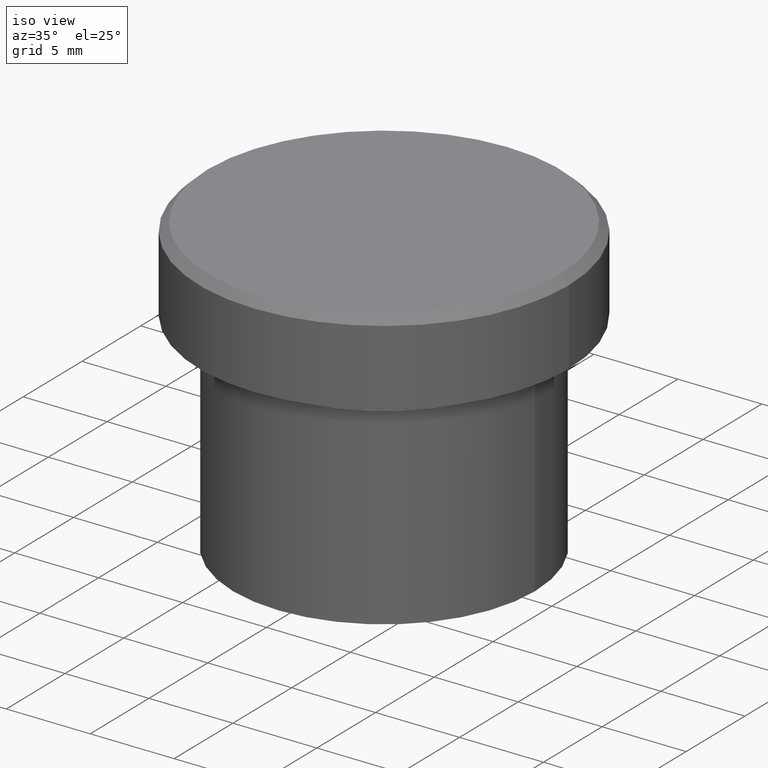
[diagram: clean part render]
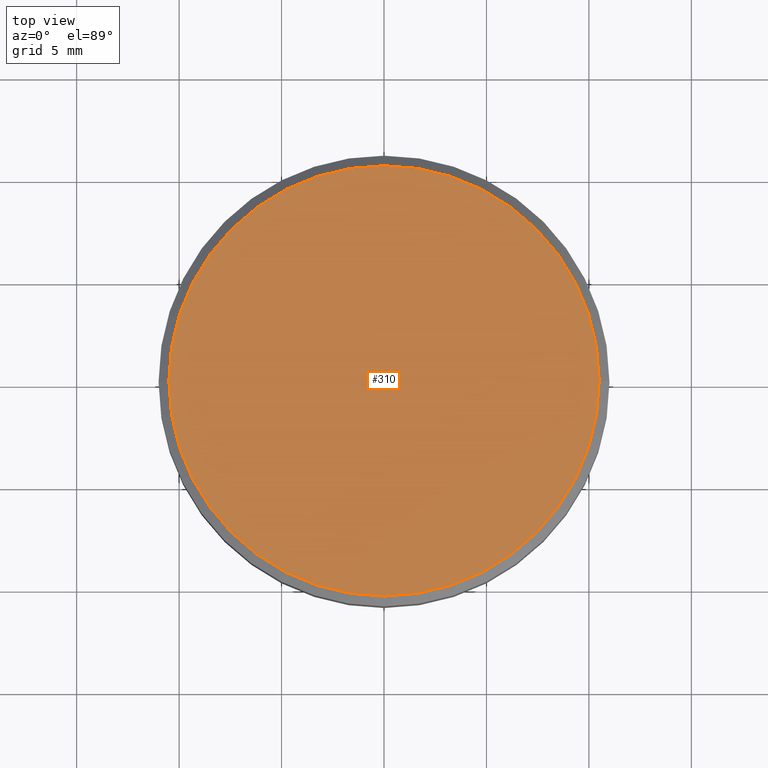
[diagram: tour spotlight — one face highlighted and labeled with its STEP entity id]
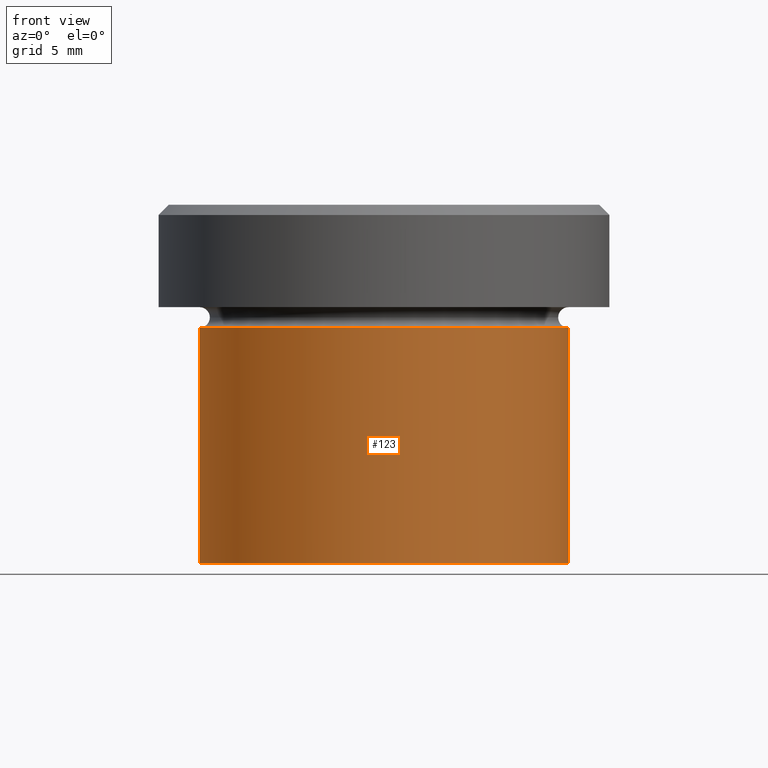
[diagram: tour spotlight — one face highlighted and labeled with its STEP entity id]
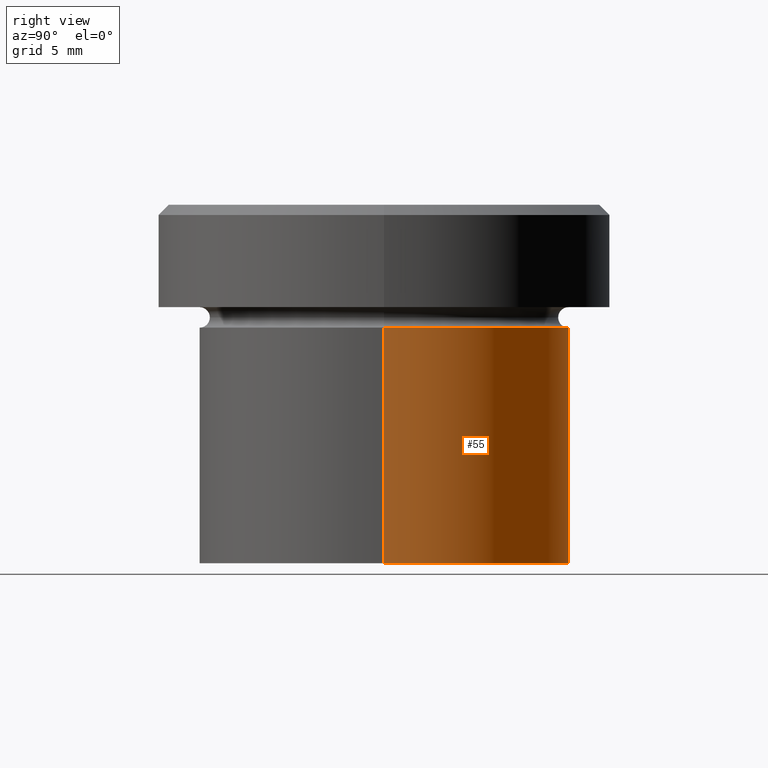
[diagram: tour spotlight — one face highlighted and labeled with its STEP entity id]
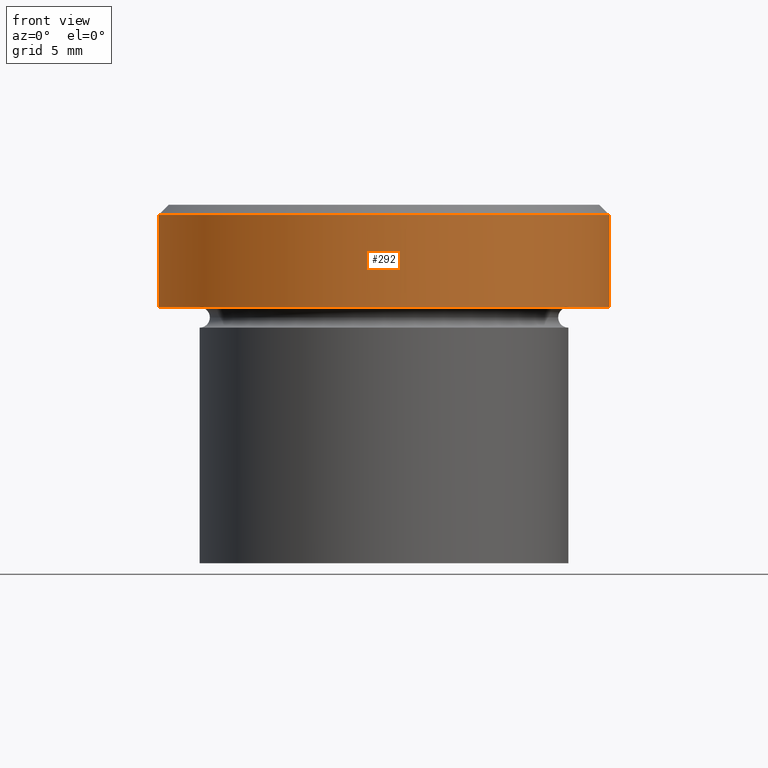
[diagram: tour spotlight — one face highlighted and labeled with its STEP entity id]
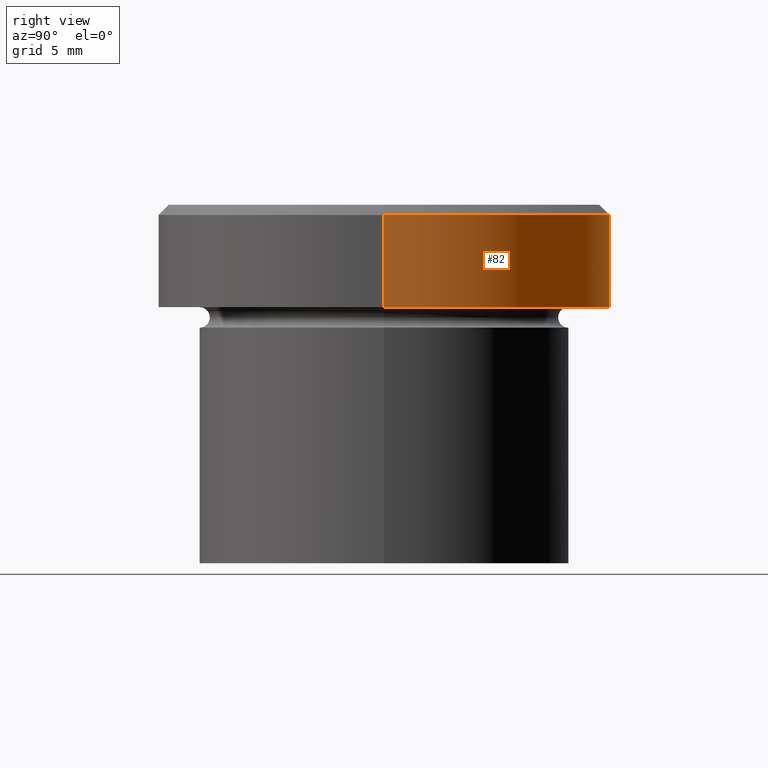
[diagram: tour spotlight — one face highlighted and labeled with its STEP entity id]
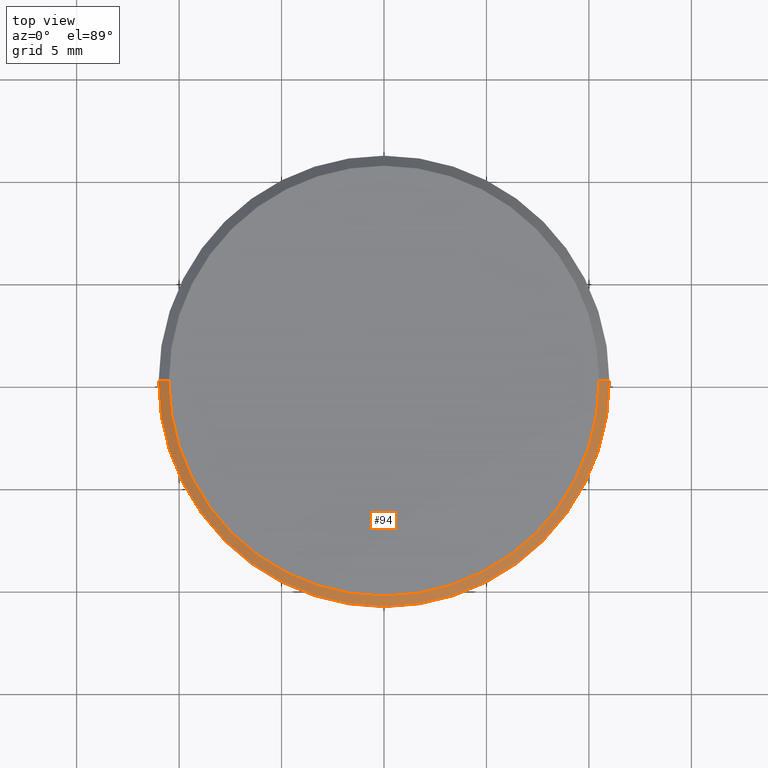
[diagram: tour spotlight — one face highlighted and labeled with its STEP entity id]
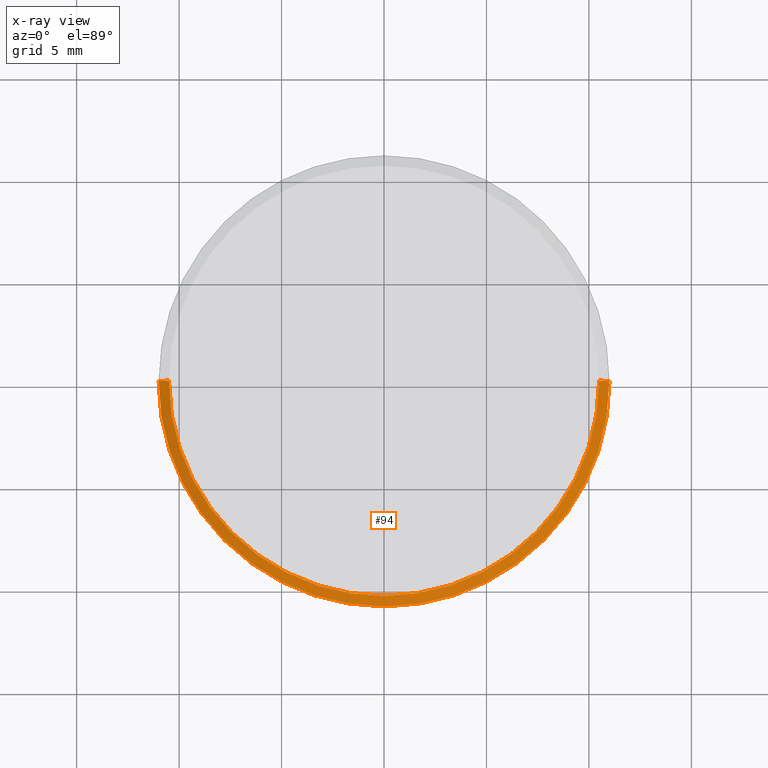
[diagram: x-ray of the same camera — body ghosted, this tour face saturated]
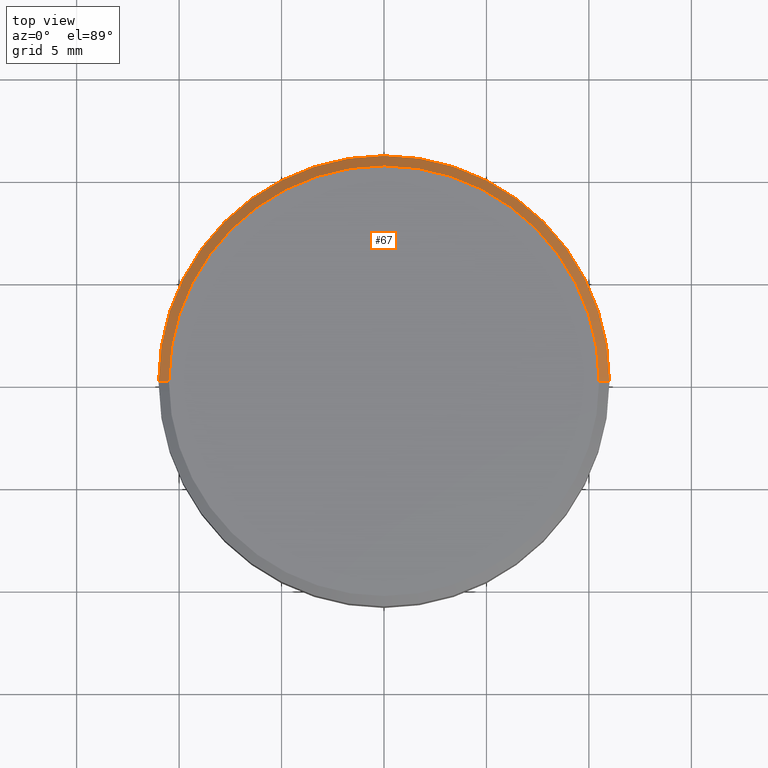
[diagram: tour spotlight — one face highlighted and labeled with its STEP entity id]
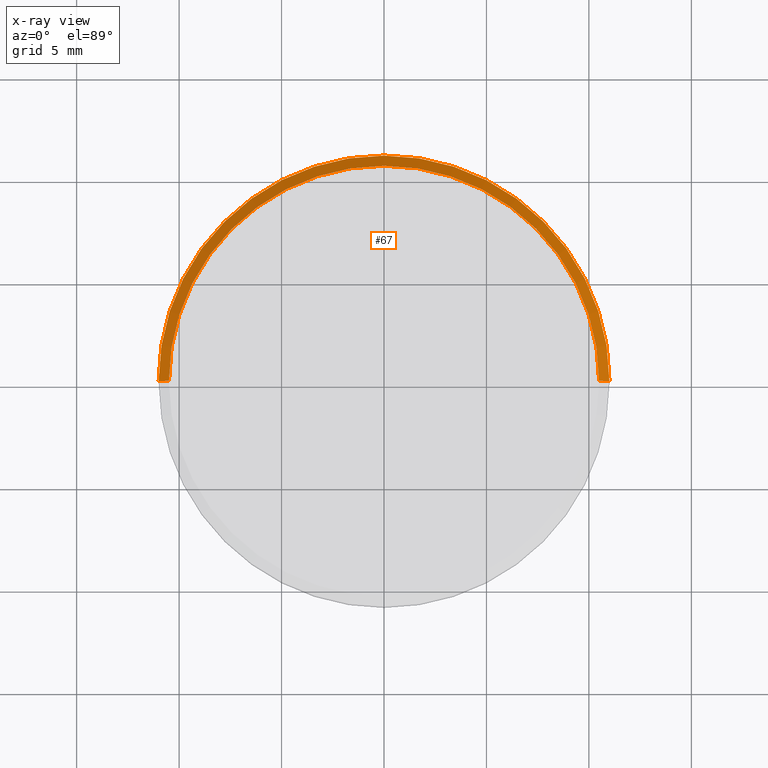
[diagram: x-ray of the same camera — body ghosted, this tour face saturated]
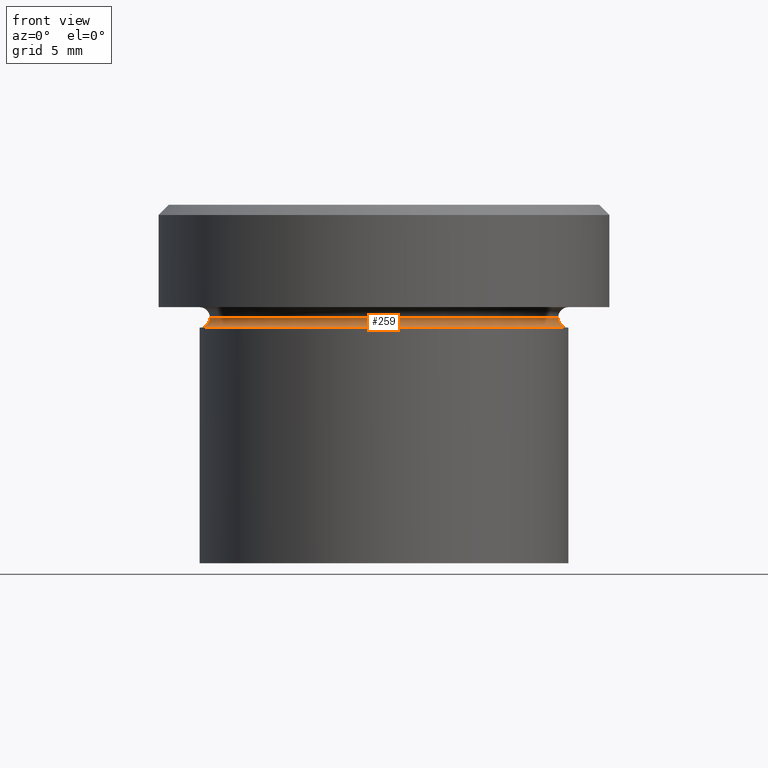
[diagram: tour spotlight — one face highlighted and labeled with its STEP entity id]
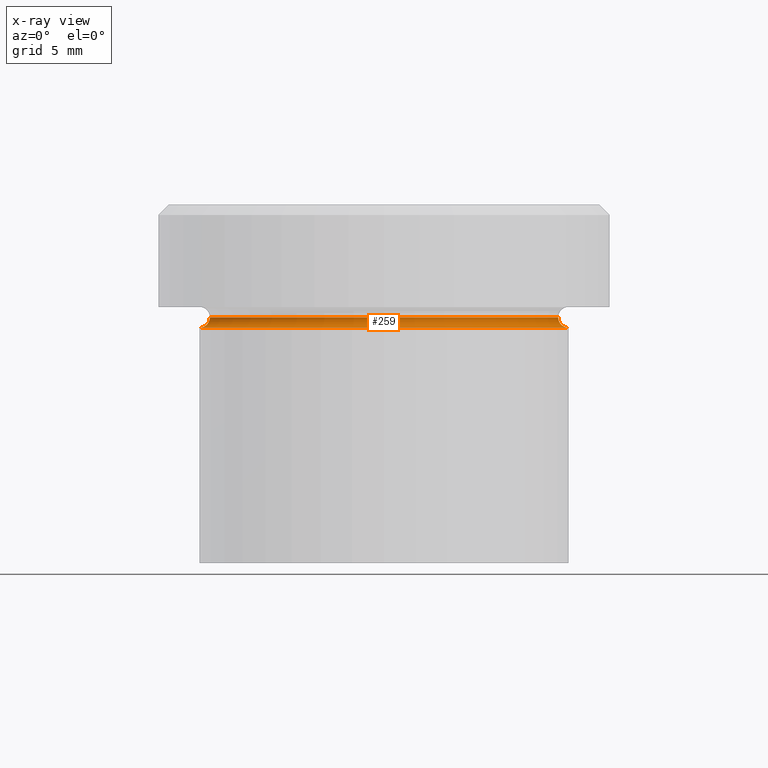
[diagram: x-ray of the same camera — body ghosted, this tour face saturated]
A machine part: a face-by-face anatomy tour. The part has 13 B-rep faces; the first image is the clean iso view, then the 8 largest visible faces are spotlighted one at a time (largest first), each with its STEP entity span.

Face 1 — top view, entity #310. In plain terms, the highlighted planar face has unit normal (0, -0, 1).
Definition (entity closure, byte-faithful):
#4 = VERTEX_POINT ( 'NONE', #103 ) ;
#20 = DIRECTION ( 'NONE',  ( 1.000000000000000000, 0.000000000000000000, 0.000000000000000000 ) ) ;
#27 = CARTESIAN_POINT ( 'NONE',  ( -10.50000000000001243, 0.000000000000000000, 0.000000000000000000 ) ) ;
#31 = CARTESIAN_POINT ( 'NONE',  ( 0.000000000000000000, 0.000000000000000000, 0.000000000000000000 ) ) ;
#49 = CIRCLE ( 'NONE', #76, 10.50000000000001243 ) ;
#52 = ORIENTED_EDGE ( 'NONE', *, *, #273, .T. ) ;
#58 = DIRECTION ( 'NONE',  ( 0.000000000000000000, -0.000000000000000000, 1.000000000000000000 ) ) ;
#74 = AXIS2_PLACEMENT_3D ( 'NONE', #93, #58, #183 ) ;
#76 = AXIS2_PLACEMENT_3D ( 'NONE', #31, #320, #160 ) ;
#81 = CARTESIAN_POINT ( 'NONE',  ( 0.000000000000000000, 0.000000000000000000, 0.000000000000000000 ) ) ;
#93 = CARTESIAN_POINT ( 'NONE',  ( 0.000000000000000000, 0.000000000000000000, 0.000000000000000000 ) ) ;
#103 = CARTESIAN_POINT ( 'NONE',  ( 10.50000000000001243, 1.316495309083405604E-15, 0.000000000000000000 ) ) ;
#110 = CIRCLE ( 'NONE', #330, 10.50000000000001243 ) ;
#120 = FACE_OUTER_BOUND ( 'NONE', #132, .T. ) ;
#132 = EDGE_LOOP ( 'NONE', ( #368, #52 ) ) ;
#160 = DIRECTION ( 'NONE',  ( 1.000000000000000000, 0.000000000000000000, 0.000000000000000000 ) ) ;
#177 = DIRECTION ( 'NONE',  ( -0.000000000000000000, -0.000000000000000000, 1.000000000000000000 ) ) ;
#183 = DIRECTION ( 'NONE',  ( 1.000000000000000000, 0.000000000000000000, 0.000000000000000000 ) ) ;
#273 = EDGE_CURVE ( 'NONE', #4, #308, #49, .T. ) ;
#308 = VERTEX_POINT ( 'NONE', #27 ) ;
#310 = ADVANCED_FACE ( 'NONE', ( #120 ), #374, .T. ) ;
#320 = DIRECTION ( 'NONE',  ( -0.000000000000000000, -0.000000000000000000, 1.000000000000000000 ) ) ;
#330 = AXIS2_PLACEMENT_3D ( 'NONE', #81, #177, #20 ) ;
#354 = EDGE_CURVE ( 'NONE', #308, #4, #110, .T. ) ;
#368 = ORIENTED_EDGE ( 'NONE', *, *, #354, .T. ) ;
#374 = PLANE ( 'NONE',  #74 ) ;

Face 2 — front view, entity #123. In plain terms, the highlighted cylindrical surface (partial cylindrical patch) has radius 9 mm, axis along (-0, -0, 1).
Definition (entity closure, byte-faithful):
#19 = CARTESIAN_POINT ( 'NONE',  ( 0.000000000000000000, 0.000000000000000000, -6.000000000000000000 ) ) ;
#21 = DIRECTION ( 'NONE',  ( 1.000000000000000000, 0.000000000000000000, 0.000000000000000000 ) ) ;
#34 = EDGE_CURVE ( 'NONE', #240, #166, #203, .T. ) ;
#39 = ORIENTED_EDGE ( 'NONE', *, *, #34, .T. ) ;
#44 = CARTESIAN_POINT ( 'NONE',  ( -9.000000000000000000, 1.102182119232617714E-15, -17.50000000000000000 ) ) ;
#63 = DIRECTION ( 'NONE',  ( -0.000000000000000000, -0.000000000000000000, 1.000000000000000000 ) ) ;
#68 = AXIS2_PLACEMENT_3D ( 'NONE', #359, #251, #69 ) ;
#69 = DIRECTION ( 'NONE',  ( 1.000000000000000000, 0.000000000000000000, 0.000000000000000000 ) ) ;
#70 = ORIENTED_EDGE ( 'NONE', *, *, #140, .T. ) ;
#80 = AXIS2_PLACEMENT_3D ( 'NONE', #253, #106, #21 ) ;
#85 = EDGE_LOOP ( 'NONE', ( #108, #39, #70, #283 ) ) ;
#106 = DIRECTION ( 'NONE',  ( -0.000000000000000000, -0.000000000000000000, 1.000000000000000000 ) ) ;
#108 = ORIENTED_EDGE ( 'NONE', *, *, #261, .F. ) ;
#116 = LINE ( 'NONE', #347, #400 ) ;
#123 = ADVANCED_FACE ( 'NONE', ( #318 ), #348, .T. ) ;
#125 = DIRECTION ( 'NONE',  ( -0.000000000000000000, -0.000000000000000000, 1.000000000000000000 ) ) ;
#126 = VERTEX_POINT ( 'NONE', #322 ) ;
#130 = LINE ( 'NONE', #131, #194 ) ;
#131 = CARTESIAN_POINT ( 'NONE',  ( 9.000000000000000000, 0.000000000000000000, 0.000000000000000000 ) ) ;
#140 = EDGE_CURVE ( 'NONE', #166, #346, #130, .T. ) ;
#166 = VERTEX_POINT ( 'NONE', #329 ) ;
#192 = EDGE_CURVE ( 'NONE', #126, #346, #199, .T. ) ;
#194 = VECTOR ( 'NONE', #125, 1000.000000000000000 ) ;
#199 = CIRCLE ( 'NONE', #231, 9.000000000000000000 ) ;
#203 = CIRCLE ( 'NONE', #80, 9.000000000000000000 ) ;
#231 = AXIS2_PLACEMENT_3D ( 'NONE', #19, #262, #256 ) ;
#240 = VERTEX_POINT ( 'NONE', #44 ) ;
#251 = DIRECTION ( 'NONE',  ( -0.000000000000000000, -0.000000000000000000, 1.000000000000000000 ) ) ;
#253 = CARTESIAN_POINT ( 'NONE',  ( 0.000000000000000000, 0.000000000000000000, -17.50000000000000000 ) ) ;
#256 = DIRECTION ( 'NONE',  ( 1.000000000000000000, 0.000000000000000000, 0.000000000000000000 ) ) ;
#261 = EDGE_CURVE ( 'NONE', #240, #126, #116, .T. ) ;
#262 = DIRECTION ( 'NONE',  ( -0.000000000000000000, -0.000000000000000000, 1.000000000000000000 ) ) ;
#283 = ORIENTED_EDGE ( 'NONE', *, *, #192, .F. ) ;
#318 = FACE_OUTER_BOUND ( 'NONE', #85, .T. ) ;
#322 = CARTESIAN_POINT ( 'NONE',  ( -9.000000000000000000, 1.102182119232617714E-15, -6.000000000000000000 ) ) ;
#329 = CARTESIAN_POINT ( 'NONE',  ( 9.000000000000000000, 0.000000000000000000, -17.50000000000000000 ) ) ;
#346 = VERTEX_POINT ( 'NONE', #365 ) ;
#347 = CARTESIAN_POINT ( 'NONE',  ( -9.000000000000000000, 1.102182119232617714E-15, 0.000000000000000000 ) ) ;
#348 = CYLINDRICAL_SURFACE ( 'NONE', #68, 9.000000000000000000 ) ;
#359 = CARTESIAN_POINT ( 'NONE',  ( 0.000000000000000000, 0.000000000000000000, 0.000000000000000000 ) ) ;
#365 = CARTESIAN_POINT ( 'NONE',  ( 9.000000000000000000, 0.000000000000000000, -6.000000000000000000 ) ) ;
#400 = VECTOR ( 'NONE', #63, 1000.000000000000000 ) ;

Face 3 — right view, entity #55. In plain terms, the highlighted cylindrical surface (partial cylindrical patch) has radius 9 mm, axis along (-0, -0, 1).
Definition (entity closure, byte-faithful):
#6 = EDGE_LOOP ( 'NONE', ( #274, #325, #255, #159 ) ) ;
#18 = DIRECTION ( 'NONE',  ( -0.000000000000000000, -0.000000000000000000, 1.000000000000000000 ) ) ;
#42 = CIRCLE ( 'NONE', #266, 9.000000000000000000 ) ;
#44 = CARTESIAN_POINT ( 'NONE',  ( -9.000000000000000000, 1.102182119232617714E-15, -17.50000000000000000 ) ) ;
#54 = CARTESIAN_POINT ( 'NONE',  ( 0.000000000000000000, 0.000000000000000000, 0.000000000000000000 ) ) ;
#55 = ADVANCED_FACE ( 'NONE', ( #209 ), #301, .T. ) ;
#63 = DIRECTION ( 'NONE',  ( -0.000000000000000000, -0.000000000000000000, 1.000000000000000000 ) ) ;
#116 = LINE ( 'NONE', #347, #400 ) ;
#118 = CIRCLE ( 'NONE', #338, 9.000000000000000000 ) ;
#125 = DIRECTION ( 'NONE',  ( -0.000000000000000000, -0.000000000000000000, 1.000000000000000000 ) ) ;
#126 = VERTEX_POINT ( 'NONE', #322 ) ;
#129 = CARTESIAN_POINT ( 'NONE',  ( 0.000000000000000000, 0.000000000000000000, -17.50000000000000000 ) ) ;
#130 = LINE ( 'NONE', #131, #194 ) ;
#131 = CARTESIAN_POINT ( 'NONE',  ( 9.000000000000000000, 0.000000000000000000, 0.000000000000000000 ) ) ;
#140 = EDGE_CURVE ( 'NONE', #166, #346, #130, .T. ) ;
#146 = DIRECTION ( 'NONE',  ( 1.000000000000000000, 0.000000000000000000, 0.000000000000000000 ) ) ;
#159 = ORIENTED_EDGE ( 'NONE', *, *, #140, .F. ) ;
#166 = VERTEX_POINT ( 'NONE', #329 ) ;
#189 = DIRECTION ( 'NONE',  ( -0.000000000000000000, -0.000000000000000000, 1.000000000000000000 ) ) ;
#194 = VECTOR ( 'NONE', #125, 1000.000000000000000 ) ;
#209 = FACE_OUTER_BOUND ( 'NONE', #6, .T. ) ;
#236 = DIRECTION ( 'NONE',  ( -0.000000000000000000, -0.000000000000000000, 1.000000000000000000 ) ) ;
#240 = VERTEX_POINT ( 'NONE', #44 ) ;
#255 = ORIENTED_EDGE ( 'NONE', *, *, #342, .F. ) ;
#261 = EDGE_CURVE ( 'NONE', #240, #126, #116, .T. ) ;
#263 = EDGE_CURVE ( 'NONE', #166, #240, #118, .T. ) ;
#266 = AXIS2_PLACEMENT_3D ( 'NONE', #339, #18, #146 ) ;
#274 = ORIENTED_EDGE ( 'NONE', *, *, #263, .T. ) ;
#301 = CYLINDRICAL_SURFACE ( 'NONE', #406, 9.000000000000000000 ) ;
#303 = DIRECTION ( 'NONE',  ( 1.000000000000000000, 0.000000000000000000, 0.000000000000000000 ) ) ;
#316 = DIRECTION ( 'NONE',  ( 1.000000000000000000, 0.000000000000000000, 0.000000000000000000 ) ) ;
#322 = CARTESIAN_POINT ( 'NONE',  ( -9.000000000000000000, 1.102182119232617714E-15, -6.000000000000000000 ) ) ;
#325 = ORIENTED_EDGE ( 'NONE', *, *, #261, .T. ) ;
#329 = CARTESIAN_POINT ( 'NONE',  ( 9.000000000000000000, 0.000000000000000000, -17.50000000000000000 ) ) ;
#338 = AXIS2_PLACEMENT_3D ( 'NONE', #129, #189, #316 ) ;
#339 = CARTESIAN_POINT ( 'NONE',  ( 0.000000000000000000, 0.000000000000000000, -6.000000000000000000 ) ) ;
#342 = EDGE_CURVE ( 'NONE', #346, #126, #42, .T. ) ;
#346 = VERTEX_POINT ( 'NONE', #365 ) ;
#347 = CARTESIAN_POINT ( 'NONE',  ( -9.000000000000000000, 1.102182119232617714E-15, 0.000000000000000000 ) ) ;
#365 = CARTESIAN_POINT ( 'NONE',  ( 9.000000000000000000, 0.000000000000000000, -6.000000000000000000 ) ) ;
#400 = VECTOR ( 'NONE', #63, 1000.000000000000000 ) ;
#406 = AXIS2_PLACEMENT_3D ( 'NONE', #54, #236, #303 ) ;

Face 4 — front view, entity #292. In plain terms, the highlighted cylindrical surface (partial cylindrical patch) has radius 11 mm, axis along (-0, -0, 1).
Definition (entity closure, byte-faithful):
#11 = LINE ( 'NONE', #332, #178 ) ;
#29 = DIRECTION ( 'NONE',  ( 0.000000000000000000, 0.000000000000000000, -1.000000000000000000 ) ) ;
#41 = DIRECTION ( 'NONE',  ( -0.000000000000000000, -0.000000000000000000, 1.000000000000000000 ) ) ;
#62 = CIRCLE ( 'NONE', #294, 11.00000000000000178 ) ;
#75 = DIRECTION ( 'NONE',  ( -0.000000000000000000, -0.000000000000000000, 1.000000000000000000 ) ) ;
#86 = DIRECTION ( 'NONE',  ( 1.000000000000000000, 0.000000000000000000, 0.000000000000000000 ) ) ;
#90 = DIRECTION ( 'NONE',  ( -0.000000000000000000, -0.000000000000000000, 1.000000000000000000 ) ) ;
#98 = CARTESIAN_POINT ( 'NONE',  ( -11.00000000000000178, 1.347111479062088602E-15, -0.4999999999999882871 ) ) ;
#109 = VERTEX_POINT ( 'NONE', #98 ) ;
#119 = ORIENTED_EDGE ( 'NONE', *, *, #397, .T. ) ;
#122 = DIRECTION ( 'NONE',  ( 1.000000000000000000, 0.000000000000000000, 0.000000000000000000 ) ) ;
#127 = AXIS2_PLACEMENT_3D ( 'NONE', #267, #369, #86 ) ;
#136 = VECTOR ( 'NONE', #41, 1000.000000000000000 ) ;
#168 = EDGE_CURVE ( 'NONE', #389, #249, #288, .T. ) ;
#170 = AXIS2_PLACEMENT_3D ( 'NONE', #181, #90, #377 ) ;
#178 = VECTOR ( 'NONE', #75, 1000.000000000000000 ) ;
#179 = EDGE_CURVE ( 'NONE', #404, #109, #11, .T. ) ;
#181 = CARTESIAN_POINT ( 'NONE',  ( 0.000000000000000000, 0.000000000000000000, 0.000000000000000000 ) ) ;
#193 = EDGE_LOOP ( 'NONE', ( #271, #286, #304, #119 ) ) ;
#196 = CARTESIAN_POINT ( 'NONE',  ( 11.00000000000000178, 0.000000000000000000, 0.000000000000000000 ) ) ;
#249 = VERTEX_POINT ( 'NONE', #295 ) ;
#267 = CARTESIAN_POINT ( 'NONE',  ( 0.000000000000000000, 0.000000000000000000, -5.000000000000000000 ) ) ;
#271 = ORIENTED_EDGE ( 'NONE', *, *, #179, .F. ) ;
#272 = CYLINDRICAL_SURFACE ( 'NONE', #170, 11.00000000000000178 ) ;
#281 = FACE_OUTER_BOUND ( 'NONE', #193, .T. ) ;
#286 = ORIENTED_EDGE ( 'NONE', *, *, #317, .T. ) ;
#288 = LINE ( 'NONE', #196, #136 ) ;
#292 = ADVANCED_FACE ( 'NONE', ( #281 ), #272, .T. ) ;
#294 = AXIS2_PLACEMENT_3D ( 'NONE', #313, #29, #122 ) ;
#295 = CARTESIAN_POINT ( 'NONE',  ( 11.00000000000000178, 0.000000000000000000, -0.4999999999999882871 ) ) ;
#298 = CIRCLE ( 'NONE', #127, 11.00000000000000000 ) ;
#304 = ORIENTED_EDGE ( 'NONE', *, *, #168, .T. ) ;
#313 = CARTESIAN_POINT ( 'NONE',  ( 0.000000000000000000, 0.000000000000000000, -0.4999999999999882871 ) ) ;
#317 = EDGE_CURVE ( 'NONE', #404, #389, #298, .T. ) ;
#332 = CARTESIAN_POINT ( 'NONE',  ( -11.00000000000000178, 1.347111479062088602E-15, 0.000000000000000000 ) ) ;
#369 = DIRECTION ( 'NONE',  ( -0.000000000000000000, -0.000000000000000000, 1.000000000000000000 ) ) ;
#371 = CARTESIAN_POINT ( 'NONE',  ( 11.00000000000000000, 0.000000000000000000, -5.000000000000000000 ) ) ;
#377 = DIRECTION ( 'NONE',  ( 1.000000000000000000, 0.000000000000000000, 0.000000000000000000 ) ) ;
#386 = CARTESIAN_POINT ( 'NONE',  ( -11.00000000000000000, 1.347111479062088602E-15, -5.000000000000000000 ) ) ;
#389 = VERTEX_POINT ( 'NONE', #371 ) ;
#397 = EDGE_CURVE ( 'NONE', #249, #109, #62, .T. ) ;
#404 = VERTEX_POINT ( 'NONE', #386 ) ;

Face 5 — right view, entity #82. In plain terms, the highlighted cylindrical surface (partial cylindrical patch) has radius 11 mm, axis along (-0, -0, 1).
Definition (entity closure, byte-faithful):
#11 = LINE ( 'NONE', #332, #178 ) ;
#23 = AXIS2_PLACEMENT_3D ( 'NONE', #50, #200, #113 ) ;
#41 = DIRECTION ( 'NONE',  ( -0.000000000000000000, -0.000000000000000000, 1.000000000000000000 ) ) ;
#50 = CARTESIAN_POINT ( 'NONE',  ( 0.000000000000000000, 0.000000000000000000, -0.4999999999999882871 ) ) ;
#51 = CIRCLE ( 'NONE', #278, 11.00000000000000000 ) ;
#75 = DIRECTION ( 'NONE',  ( -0.000000000000000000, -0.000000000000000000, 1.000000000000000000 ) ) ;
#82 = ADVANCED_FACE ( 'NONE', ( #351 ), #357, .T. ) ;
#92 = CARTESIAN_POINT ( 'NONE',  ( 0.000000000000000000, 0.000000000000000000, -5.000000000000000000 ) ) ;
#98 = CARTESIAN_POINT ( 'NONE',  ( -11.00000000000000178, 1.347111479062088602E-15, -0.4999999999999882871 ) ) ;
#102 = CARTESIAN_POINT ( 'NONE',  ( 0.000000000000000000, 0.000000000000000000, 0.000000000000000000 ) ) ;
#109 = VERTEX_POINT ( 'NONE', #98 ) ;
#113 = DIRECTION ( 'NONE',  ( 1.000000000000000000, 0.000000000000000000, 0.000000000000000000 ) ) ;
#136 = VECTOR ( 'NONE', #41, 1000.000000000000000 ) ;
#151 = EDGE_LOOP ( 'NONE', ( #186, #217, #214, #381 ) ) ;
#161 = DIRECTION ( 'NONE',  ( 1.000000000000000000, 0.000000000000000000, 0.000000000000000000 ) ) ;
#165 = DIRECTION ( 'NONE',  ( -0.000000000000000000, -0.000000000000000000, 1.000000000000000000 ) ) ;
#168 = EDGE_CURVE ( 'NONE', #389, #249, #288, .T. ) ;
#178 = VECTOR ( 'NONE', #75, 1000.000000000000000 ) ;
#179 = EDGE_CURVE ( 'NONE', #404, #109, #11, .T. ) ;
#186 = ORIENTED_EDGE ( 'NONE', *, *, #391, .T. ) ;
#191 = DIRECTION ( 'NONE',  ( 1.000000000000000000, 0.000000000000000000, 0.000000000000000000 ) ) ;
#196 = CARTESIAN_POINT ( 'NONE',  ( 11.00000000000000178, 0.000000000000000000, 0.000000000000000000 ) ) ;
#200 = DIRECTION ( 'NONE',  ( 0.000000000000000000, 0.000000000000000000, -1.000000000000000000 ) ) ;
#214 = ORIENTED_EDGE ( 'NONE', *, *, #230, .T. ) ;
#217 = ORIENTED_EDGE ( 'NONE', *, *, #179, .T. ) ;
#230 = EDGE_CURVE ( 'NONE', #109, #249, #345, .T. ) ;
#249 = VERTEX_POINT ( 'NONE', #295 ) ;
#278 = AXIS2_PLACEMENT_3D ( 'NONE', #92, #408, #191 ) ;
#288 = LINE ( 'NONE', #196, #136 ) ;
#295 = CARTESIAN_POINT ( 'NONE',  ( 11.00000000000000178, 0.000000000000000000, -0.4999999999999882871 ) ) ;
#332 = CARTESIAN_POINT ( 'NONE',  ( -11.00000000000000178, 1.347111479062088602E-15, 0.000000000000000000 ) ) ;
#345 = CIRCLE ( 'NONE', #23, 11.00000000000000178 ) ;
#351 = FACE_OUTER_BOUND ( 'NONE', #151, .T. ) ;
#357 = CYLINDRICAL_SURFACE ( 'NONE', #392, 11.00000000000000178 ) ;
#371 = CARTESIAN_POINT ( 'NONE',  ( 11.00000000000000000, 0.000000000000000000, -5.000000000000000000 ) ) ;
#381 = ORIENTED_EDGE ( 'NONE', *, *, #168, .F. ) ;
#386 = CARTESIAN_POINT ( 'NONE',  ( -11.00000000000000000, 1.347111479062088602E-15, -5.000000000000000000 ) ) ;
#389 = VERTEX_POINT ( 'NONE', #371 ) ;
#391 = EDGE_CURVE ( 'NONE', #389, #404, #51, .T. ) ;
#392 = AXIS2_PLACEMENT_3D ( 'NONE', #102, #165, #161 ) ;
#404 = VERTEX_POINT ( 'NONE', #386 ) ;
#408 = DIRECTION ( 'NONE',  ( -0.000000000000000000, -0.000000000000000000, 1.000000000000000000 ) ) ;

Face 6 — top view, entity #94. An x-ray twin of the same camera follows (body ghosted, this face saturated) — the face is partly hidden behind the body. In plain terms, the highlighted conical surface has half-angle 45 deg.
Definition (entity closure, byte-faithful):
#4 = VERTEX_POINT ( 'NONE', #103 ) ;
#20 = DIRECTION ( 'NONE',  ( 1.000000000000000000, 0.000000000000000000, 0.000000000000000000 ) ) ;
#25 = EDGE_LOOP ( 'NONE', ( #302, #327, #312, #38 ) ) ;
#27 = CARTESIAN_POINT ( 'NONE',  ( -10.50000000000001243, 0.000000000000000000, 0.000000000000000000 ) ) ;
#29 = DIRECTION ( 'NONE',  ( 0.000000000000000000, 0.000000000000000000, -1.000000000000000000 ) ) ;
#32 = CARTESIAN_POINT ( 'NONE',  ( 0.000000000000000000, 0.000000000000000000, 0.000000000000000000 ) ) ;
#38 = ORIENTED_EDGE ( 'NONE', *, *, #397, .F. ) ;
#46 = EDGE_CURVE ( 'NONE', #4, #249, #234, .T. ) ;
#62 = CIRCLE ( 'NONE', #294, 11.00000000000000178 ) ;
#81 = CARTESIAN_POINT ( 'NONE',  ( 0.000000000000000000, 0.000000000000000000, 0.000000000000000000 ) ) ;
#84 = DIRECTION ( 'NONE',  ( 0.7071067811865474617, 8.659560562354932858E-17, -0.7071067811865474617 ) ) ;
#94 = ADVANCED_FACE ( 'NONE', ( #137 ), #162, .T. ) ;
#98 = CARTESIAN_POINT ( 'NONE',  ( -11.00000000000000178, 1.347111479062088602E-15, -0.4999999999999882871 ) ) ;
#103 = CARTESIAN_POINT ( 'NONE',  ( 10.50000000000001243, 1.316495309083405604E-15, 0.000000000000000000 ) ) ;
#105 = CARTESIAN_POINT ( 'NONE',  ( -10.50000000000001243, 0.000000000000000000, 0.000000000000000000 ) ) ;
#109 = VERTEX_POINT ( 'NONE', #98 ) ;
#110 = CIRCLE ( 'NONE', #330, 10.50000000000001243 ) ;
#122 = DIRECTION ( 'NONE',  ( 1.000000000000000000, 0.000000000000000000, 0.000000000000000000 ) ) ;
#137 = FACE_OUTER_BOUND ( 'NONE', #25, .T. ) ;
#162 = CONICAL_SURFACE ( 'NONE', #373, 10.50000000000001243, 0.7853981633974482790 ) ;
#169 = DIRECTION ( 'NONE',  ( -0.7071067811865474617, 0.000000000000000000, -0.7071067811865474617 ) ) ;
#173 = EDGE_CURVE ( 'NONE', #308, #109, #387, .T. ) ;
#177 = DIRECTION ( 'NONE',  ( -0.000000000000000000, -0.000000000000000000, 1.000000000000000000 ) ) ;
#216 = DIRECTION ( 'NONE',  ( -1.000000000000000000, 0.000000000000000000, 0.000000000000000000 ) ) ;
#223 = DIRECTION ( 'NONE',  ( 0.000000000000000000, 0.000000000000000000, -1.000000000000000000 ) ) ;
#234 = LINE ( 'NONE', #341, #309 ) ;
#244 = VECTOR ( 'NONE', #169, 1000.000000000000114 ) ;
#249 = VERTEX_POINT ( 'NONE', #295 ) ;
#294 = AXIS2_PLACEMENT_3D ( 'NONE', #313, #29, #122 ) ;
#295 = CARTESIAN_POINT ( 'NONE',  ( 11.00000000000000178, 0.000000000000000000, -0.4999999999999882871 ) ) ;
#302 = ORIENTED_EDGE ( 'NONE', *, *, #46, .F. ) ;
#308 = VERTEX_POINT ( 'NONE', #27 ) ;
#309 = VECTOR ( 'NONE', #84, 1000.000000000000114 ) ;
#312 = ORIENTED_EDGE ( 'NONE', *, *, #173, .T. ) ;
#313 = CARTESIAN_POINT ( 'NONE',  ( 0.000000000000000000, 0.000000000000000000, -0.4999999999999882871 ) ) ;
#327 = ORIENTED_EDGE ( 'NONE', *, *, #354, .F. ) ;
#330 = AXIS2_PLACEMENT_3D ( 'NONE', #81, #177, #20 ) ;
#341 = CARTESIAN_POINT ( 'NONE',  ( 10.50000000000001243, 1.285879139104722408E-15, 0.000000000000000000 ) ) ;
#354 = EDGE_CURVE ( 'NONE', #308, #4, #110, .T. ) ;
#373 = AXIS2_PLACEMENT_3D ( 'NONE', #32, #223, #216 ) ;
#387 = LINE ( 'NONE', #105, #244 ) ;
#397 = EDGE_CURVE ( 'NONE', #249, #109, #62, .T. ) ;

Face 7 — top view, entity #67. An x-ray twin of the same camera follows (body ghosted, this face saturated) — the face is partly hidden behind the body. In plain terms, the highlighted conical surface has half-angle 45 deg.
Definition (entity closure, byte-faithful):
#3 = FACE_OUTER_BOUND ( 'NONE', #89, .T. ) ;
#4 = VERTEX_POINT ( 'NONE', #103 ) ;
#16 = ORIENTED_EDGE ( 'NONE', *, *, #173, .F. ) ;
#23 = AXIS2_PLACEMENT_3D ( 'NONE', #50, #200, #113 ) ;
#27 = CARTESIAN_POINT ( 'NONE',  ( -10.50000000000001243, 0.000000000000000000, 0.000000000000000000 ) ) ;
#31 = CARTESIAN_POINT ( 'NONE',  ( 0.000000000000000000, 0.000000000000000000, 0.000000000000000000 ) ) ;
#35 = ORIENTED_EDGE ( 'NONE', *, *, #230, .F. ) ;
#46 = EDGE_CURVE ( 'NONE', #4, #249, #234, .T. ) ;
#49 = CIRCLE ( 'NONE', #76, 10.50000000000001243 ) ;
#50 = CARTESIAN_POINT ( 'NONE',  ( 0.000000000000000000, 0.000000000000000000, -0.4999999999999882871 ) ) ;
#67 = ADVANCED_FACE ( 'NONE', ( #3 ), #88, .T. ) ;
#76 = AXIS2_PLACEMENT_3D ( 'NONE', #31, #320, #160 ) ;
#84 = DIRECTION ( 'NONE',  ( 0.7071067811865474617, 8.659560562354932858E-17, -0.7071067811865474617 ) ) ;
#88 = CONICAL_SURFACE ( 'NONE', #185, 10.50000000000001243, 0.7853981633974482790 ) ;
#89 = EDGE_LOOP ( 'NONE', ( #184, #211, #35, #16 ) ) ;
#98 = CARTESIAN_POINT ( 'NONE',  ( -11.00000000000000178, 1.347111479062088602E-15, -0.4999999999999882871 ) ) ;
#103 = CARTESIAN_POINT ( 'NONE',  ( 10.50000000000001243, 1.316495309083405604E-15, 0.000000000000000000 ) ) ;
#105 = CARTESIAN_POINT ( 'NONE',  ( -10.50000000000001243, 0.000000000000000000, 0.000000000000000000 ) ) ;
#109 = VERTEX_POINT ( 'NONE', #98 ) ;
#113 = DIRECTION ( 'NONE',  ( 1.000000000000000000, 0.000000000000000000, 0.000000000000000000 ) ) ;
#160 = DIRECTION ( 'NONE',  ( 1.000000000000000000, 0.000000000000000000, 0.000000000000000000 ) ) ;
#163 = DIRECTION ( 'NONE',  ( -1.000000000000000000, 0.000000000000000000, 0.000000000000000000 ) ) ;
#169 = DIRECTION ( 'NONE',  ( -0.7071067811865474617, 0.000000000000000000, -0.7071067811865474617 ) ) ;
#173 = EDGE_CURVE ( 'NONE', #308, #109, #387, .T. ) ;
#184 = ORIENTED_EDGE ( 'NONE', *, *, #273, .F. ) ;
#185 = AXIS2_PLACEMENT_3D ( 'NONE', #219, #221, #163 ) ;
#200 = DIRECTION ( 'NONE',  ( 0.000000000000000000, 0.000000000000000000, -1.000000000000000000 ) ) ;
#211 = ORIENTED_EDGE ( 'NONE', *, *, #46, .T. ) ;
#219 = CARTESIAN_POINT ( 'NONE',  ( 0.000000000000000000, 0.000000000000000000, 0.000000000000000000 ) ) ;
#221 = DIRECTION ( 'NONE',  ( 0.000000000000000000, 0.000000000000000000, -1.000000000000000000 ) ) ;
#230 = EDGE_CURVE ( 'NONE', #109, #249, #345, .T. ) ;
#234 = LINE ( 'NONE', #341, #309 ) ;
#244 = VECTOR ( 'NONE', #169, 1000.000000000000114 ) ;
#249 = VERTEX_POINT ( 'NONE', #295 ) ;
#273 = EDGE_CURVE ( 'NONE', #4, #308, #49, .T. ) ;
#295 = CARTESIAN_POINT ( 'NONE',  ( 11.00000000000000178, 0.000000000000000000, -0.4999999999999882871 ) ) ;
#308 = VERTEX_POINT ( 'NONE', #27 ) ;
#309 = VECTOR ( 'NONE', #84, 1000.000000000000114 ) ;
#320 = DIRECTION ( 'NONE',  ( -0.000000000000000000, -0.000000000000000000, 1.000000000000000000 ) ) ;
#341 = CARTESIAN_POINT ( 'NONE',  ( 10.50000000000001243, 1.285879139104722408E-15, 0.000000000000000000 ) ) ;
#345 = CIRCLE ( 'NONE', #23, 11.00000000000000178 ) ;
#387 = LINE ( 'NONE', #105, #244 ) ;

Face 8 — front view, entity #259. An x-ray twin of the same camera follows (body ghosted, this face saturated) — the face is partly hidden behind the body. In plain terms, the highlighted toroidal blend (fillet) surface has major radius 9 mm and minor (blend) radius 0.5 mm.
Definition (entity closure, byte-faithful):
#8 = DIRECTION ( 'NONE',  ( 0.000000000000000000, 0.000000000000000000, -1.000000000000000000 ) ) ;
#19 = CARTESIAN_POINT ( 'NONE',  ( 0.000000000000000000, 0.000000000000000000, -6.000000000000000000 ) ) ;
#36 = CIRCLE ( 'NONE', #237, 8.499999999999998224 ) ;
#37 = CARTESIAN_POINT ( 'NONE',  ( 8.499999999999998224, 0.000000000000000000, -5.500000000000000000 ) ) ;
#43 = DIRECTION ( 'NONE',  ( 1.000000000000000000, 0.000000000000000000, 0.000000000000000000 ) ) ;
#45 = DIRECTION ( 'NONE',  ( -1.000000000000000000, 1.224646799147353454E-16, 0.000000000000000000 ) ) ;
#48 = DIRECTION ( 'NONE',  ( -0.000000000000000000, -0.000000000000000000, 1.000000000000000000 ) ) ;
#57 = ORIENTED_EDGE ( 'NONE', *, *, #247, .F. ) ;
#99 = VERTEX_POINT ( 'NONE', #37 ) ;
#121 = VERTEX_POINT ( 'NONE', #248 ) ;
#126 = VERTEX_POINT ( 'NONE', #322 ) ;
#142 = EDGE_LOOP ( 'NONE', ( #57, #180, #197, #344 ) ) ;
#154 = EDGE_CURVE ( 'NONE', #99, #346, #156, .T. ) ;
#156 = CIRCLE ( 'NONE', #220, 0.5000000000000004441 ) ;
#175 = DIRECTION ( 'NONE',  ( 1.000000000000000000, 0.000000000000000000, 0.000000000000000000 ) ) ;
#180 = ORIENTED_EDGE ( 'NONE', *, *, #233, .T. ) ;
#188 = CARTESIAN_POINT ( 'NONE',  ( 0.000000000000000000, 0.000000000000000000, -5.500000000000000000 ) ) ;
#192 = EDGE_CURVE ( 'NONE', #126, #346, #199, .T. ) ;
#197 = ORIENTED_EDGE ( 'NONE', *, *, #192, .T. ) ;
#199 = CIRCLE ( 'NONE', #231, 9.000000000000000000 ) ;
#204 = AXIS2_PLACEMENT_3D ( 'NONE', #188, #241, #43 ) ;
#205 = DIRECTION ( 'NONE',  ( 1.224646799147353207E-16, 1.000000000000000000, 0.000000000000000000 ) ) ;
#220 = AXIS2_PLACEMENT_3D ( 'NONE', #326, #285, #8 ) ;
#226 = CARTESIAN_POINT ( 'NONE',  ( -9.000000000000000000, 1.102182119232617714E-15, -5.500000000000000000 ) ) ;
#231 = AXIS2_PLACEMENT_3D ( 'NONE', #19, #262, #256 ) ;
#233 = EDGE_CURVE ( 'NONE', #121, #126, #245, .T. ) ;
#237 = AXIS2_PLACEMENT_3D ( 'NONE', #334, #48, #175 ) ;
#241 = DIRECTION ( 'NONE',  ( -0.000000000000000000, -0.000000000000000000, 1.000000000000000000 ) ) ;
#245 = CIRCLE ( 'NONE', #366, 0.5000000000000004441 ) ;
#247 = EDGE_CURVE ( 'NONE', #121, #99, #36, .T. ) ;
#248 = CARTESIAN_POINT ( 'NONE',  ( -8.499999999999998224, 1.071565949253933927E-15, -5.500000000000000000 ) ) ;
#256 = DIRECTION ( 'NONE',  ( 1.000000000000000000, 0.000000000000000000, 0.000000000000000000 ) ) ;
#259 = ADVANCED_FACE ( 'NONE', ( #260 ), #293, .F. ) ;
#260 = FACE_OUTER_BOUND ( 'NONE', #142, .T. ) ;
#262 = DIRECTION ( 'NONE',  ( -0.000000000000000000, -0.000000000000000000, 1.000000000000000000 ) ) ;
#285 = DIRECTION ( 'NONE',  ( 0.000000000000000000, -1.000000000000000000, 0.000000000000000000 ) ) ;
#293 = TOROIDAL_SURFACE ( 'NONE', #204, 9.000000000000000000, 0.5000000000000000000 ) ;
#322 = CARTESIAN_POINT ( 'NONE',  ( -9.000000000000000000, 1.102182119232617714E-15, -6.000000000000000000 ) ) ;
#326 = CARTESIAN_POINT ( 'NONE',  ( 9.000000000000000000, 0.000000000000000000, -5.500000000000000000 ) ) ;
#334 = CARTESIAN_POINT ( 'NONE',  ( 0.000000000000000000, 0.000000000000000000, -5.500000000000000000 ) ) ;
#344 = ORIENTED_EDGE ( 'NONE', *, *, #154, .F. ) ;
#346 = VERTEX_POINT ( 'NONE', #365 ) ;
#365 = CARTESIAN_POINT ( 'NONE',  ( 9.000000000000000000, 0.000000000000000000, -6.000000000000000000 ) ) ;
#366 = AXIS2_PLACEMENT_3D ( 'NONE', #226, #205, #45 ) ;